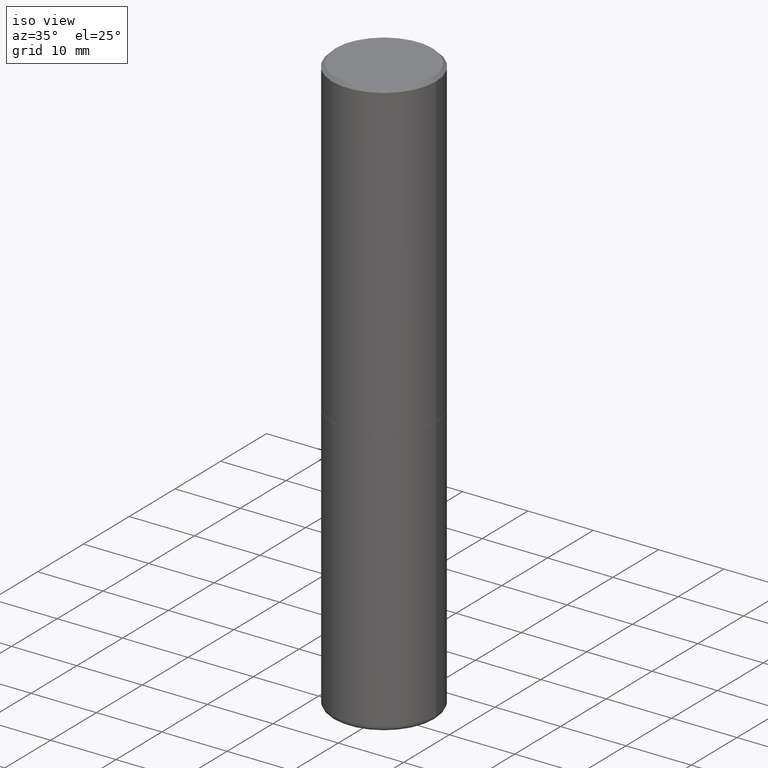
[diagram: clean part render]
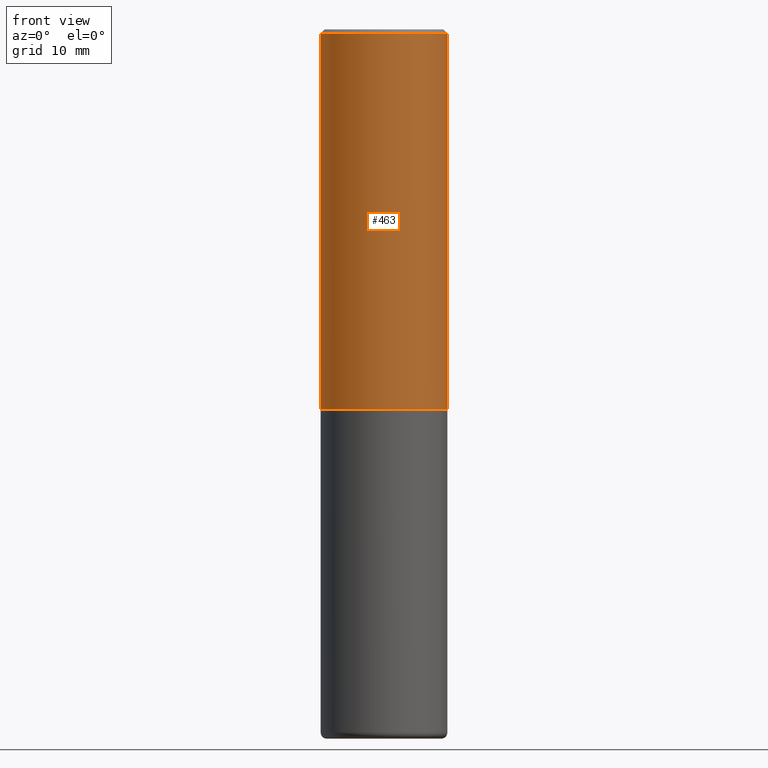
[diagram: tour spotlight — one face highlighted and labeled with its STEP entity id]
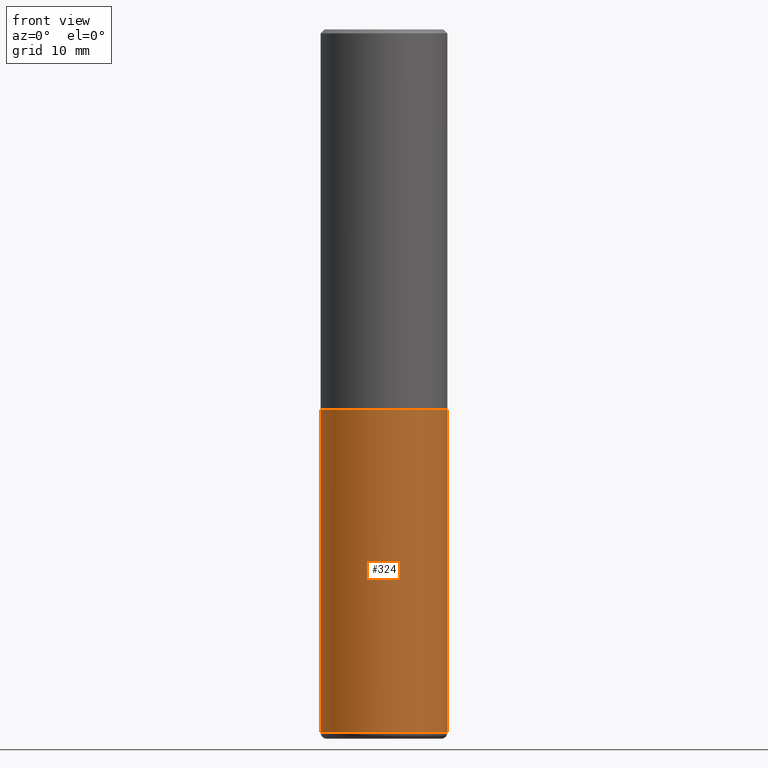
[diagram: tour spotlight — one face highlighted and labeled with its STEP entity id]
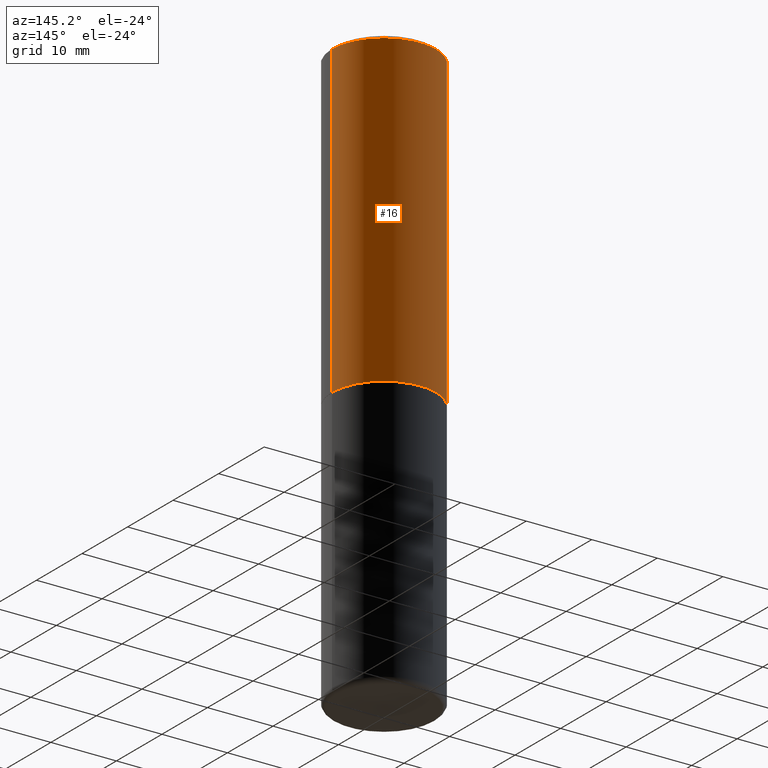
[diagram: tour spotlight — one face highlighted and labeled with its STEP entity id]
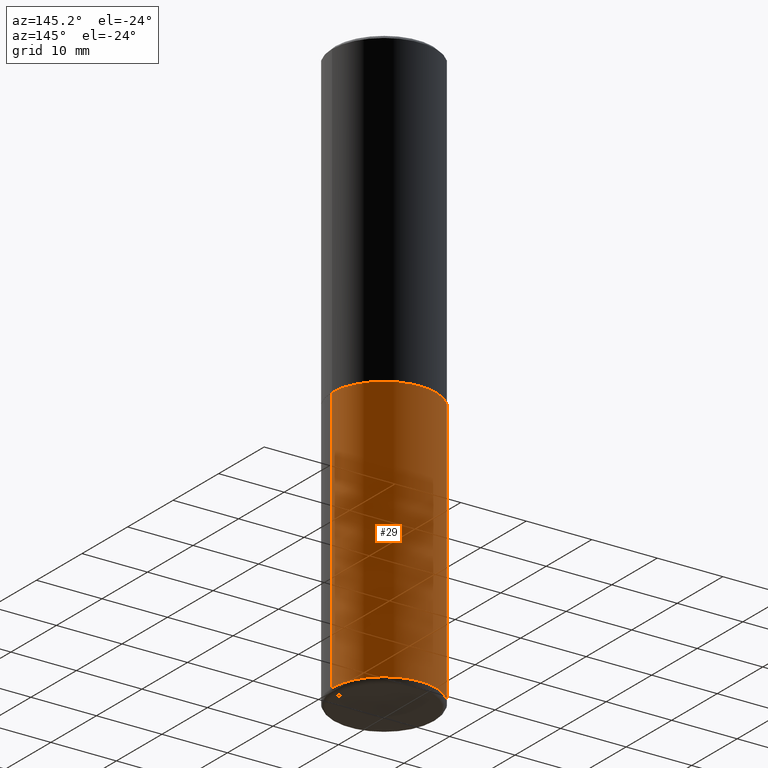
[diagram: tour spotlight — one face highlighted and labeled with its STEP entity id]
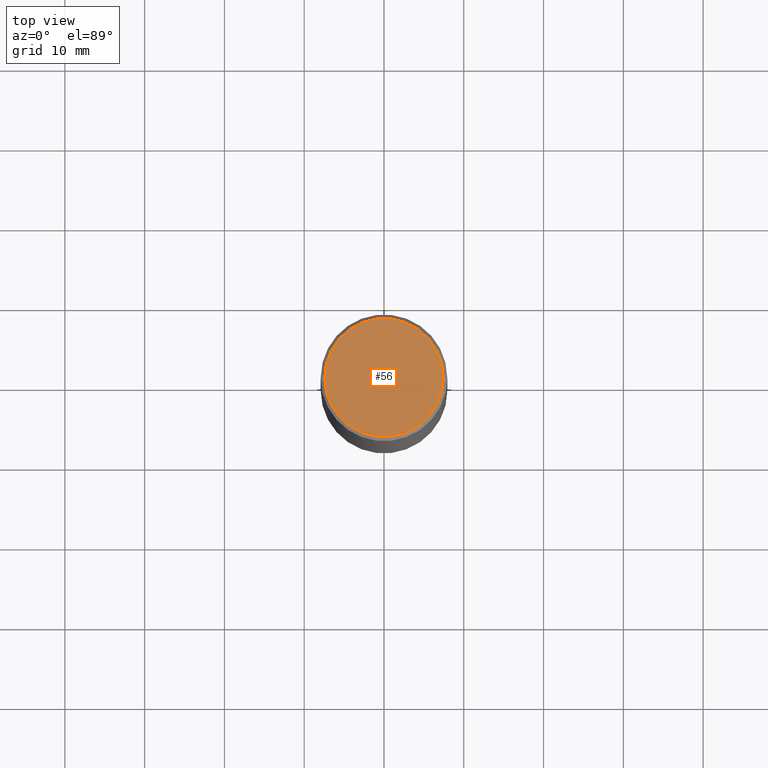
[diagram: tour spotlight — one face highlighted and labeled with its STEP entity id]
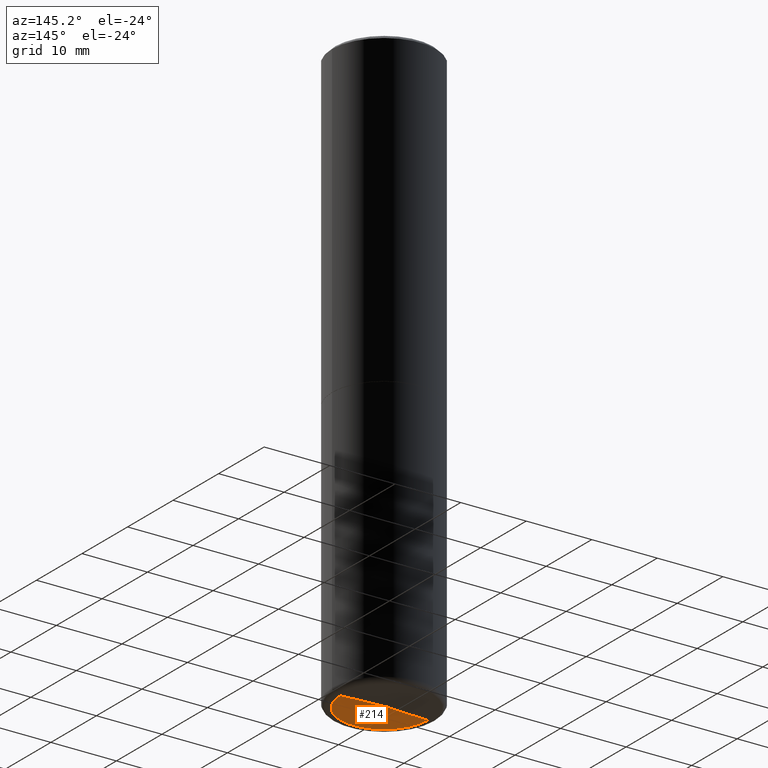
[diagram: tour spotlight — one face highlighted and labeled with its STEP entity id]
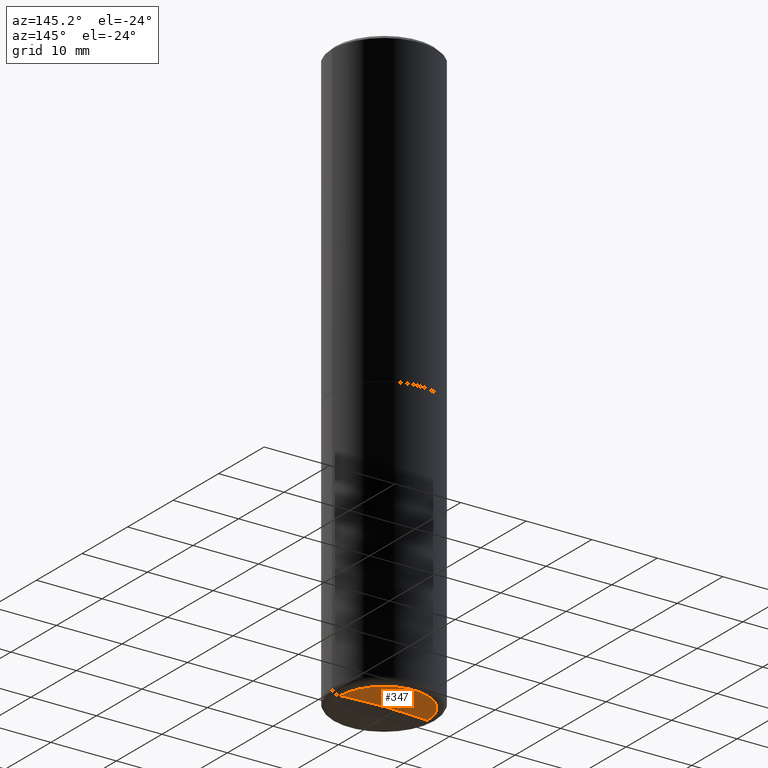
[diagram: tour spotlight — one face highlighted and labeled with its STEP entity id]
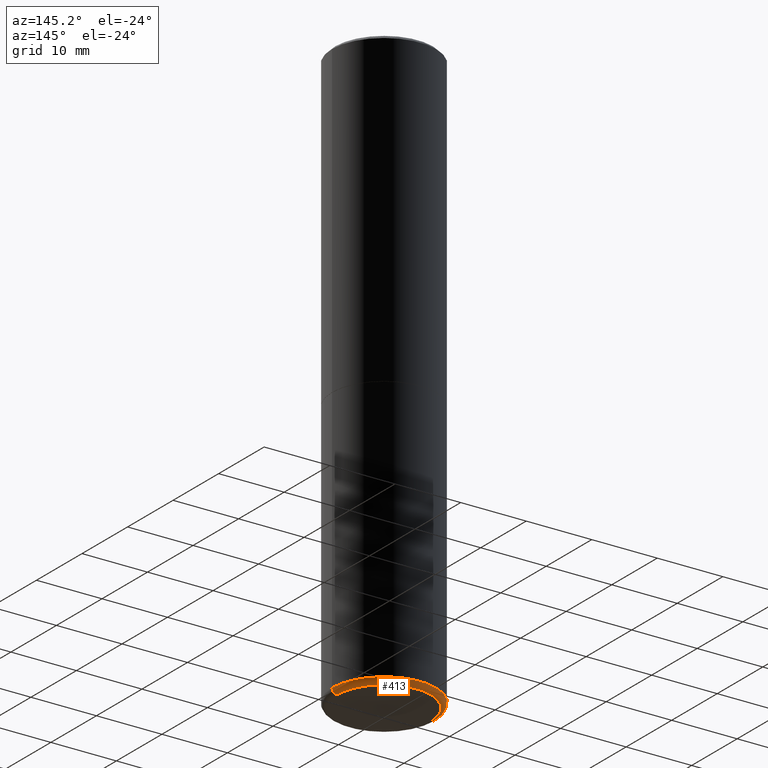
[diagram: tour spotlight — one face highlighted and labeled with its STEP entity id]
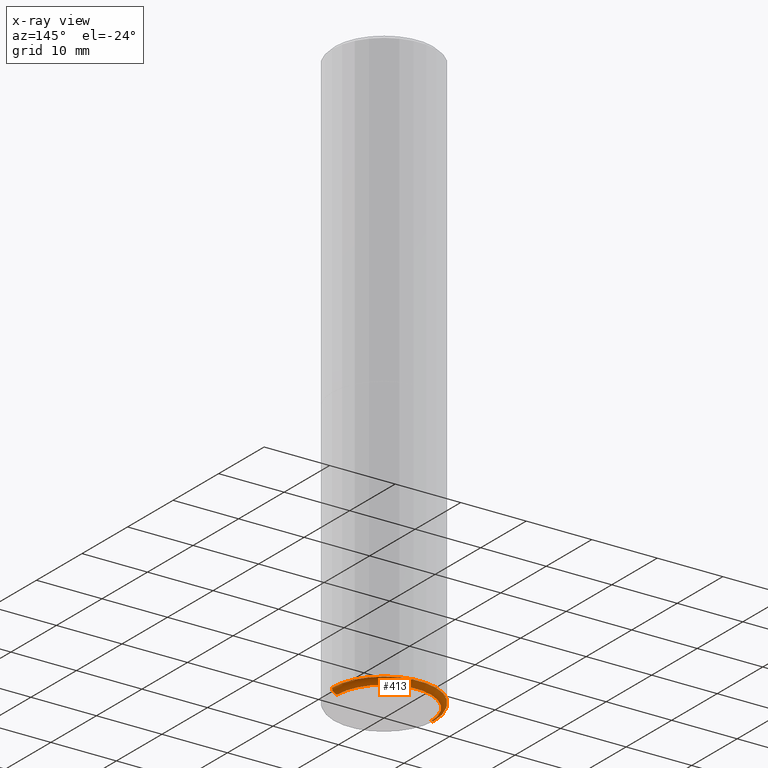
[diagram: x-ray of the same camera — body ghosted, this tour face saturated]
A machine part: a face-by-face anatomy tour. The part has 17 B-rep faces; the first image is the clean iso view, then the 8 largest visible faces are spotlighted one at a time (largest first), each with its STEP entity span.

Face 1 — front view, entity #463. In plain terms, the highlighted cylindrical surface (partial cylindrical patch) has radius 7.9375 mm, axis along (-0, 0, 1).
Definition (entity closure, byte-faithful):
#7 = ORIENTED_EDGE ( 'NONE', *, *, #161, .F. ) ;
#13 = VERTEX_POINT ( 'NONE', #18 ) ;
#15 = DIRECTION ( 'NONE',  ( -2.445468806185136877E-29, 3.491481338843145188E-15, 1.000000000000000000 ) ) ;
#18 = CARTESIAN_POINT ( 'NONE',  ( 0.3124999999999994449, -2.213735251080463362E-15, -0.02000000000000014960 ) ) ;
#52 = DIRECTION ( 'NONE',  ( -2.445468806185136877E-29, 3.491481338843145188E-15, 1.000000000000000000 ) ) ;
#72 = ORIENTED_EDGE ( 'NONE', *, *, #388, .F. ) ;
#73 = CIRCLE ( 'NONE', #148, 0.3124999999999997224 ) ;
#77 = VERTEX_POINT ( 'NONE', #325 ) ;
#108 = EDGE_CURVE ( 'NONE', #77, #425, #73, .T. ) ;
#136 = CARTESIAN_POINT ( 'NONE',  ( 4.890937612370309067E-31, -6.982962677686343378E-17, -0.02000000000000014960 ) ) ;
#147 = ORIENTED_EDGE ( 'NONE', *, *, #275, .T. ) ;
#148 = AXIS2_PLACEMENT_3D ( 'NONE', #201, #162, #366 ) ;
#161 = EDGE_CURVE ( 'NONE', #229, #13, #414, .T. ) ;
#162 = DIRECTION ( 'NONE',  ( -2.445468806185136597E-29, 3.491481338843145583E-15, 1.000000000000000000 ) ) ;
#192 = CARTESIAN_POINT ( 'NONE',  ( -0.3124999999999996114, 2.220446049250310320E-15, -1.537167215704655990E-29 ) ) ;
#201 = CARTESIAN_POINT ( 'NONE',  ( 4.582808542790944955E-29, -6.543036028992054122E-15, -1.873999999999999666 ) ) ;
#202 = DIRECTION ( 'NONE',  ( -2.445468806185136597E-29, 3.491481338843145583E-15, 1.000000000000000000 ) ) ;
#208 = CYLINDRICAL_SURFACE ( 'NONE', #421, 0.3124999999999996114 ) ;
#229 = VERTEX_POINT ( 'NONE', #447 ) ;
#231 = VECTOR ( 'NONE', #15, 39.37007874015748143 ) ;
#244 = CARTESIAN_POINT ( 'NONE',  ( 0.000000000000000000, 0.000000000000000000, 0.000000000000000000 ) ) ;
#275 = EDGE_CURVE ( 'NONE', #425, #13, #473, .T. ) ;
#285 = CARTESIAN_POINT ( 'NONE',  ( 0.3124999999999997224, -8.725211865769010891E-15, -1.873999999999999666 ) ) ;
#325 = CARTESIAN_POINT ( 'NONE',  ( -0.3124999999999997224, -1.085986778634146418E-15, -1.873999999999999666 ) ) ;
#345 = VECTOR ( 'NONE', #52, 39.37007874015748143 ) ;
#366 = DIRECTION ( 'NONE',  ( 1.000000000000000000, -6.982962677686266711E-15, 0.000000000000000000 ) ) ;
#385 = ORIENTED_EDGE ( 'NONE', *, *, #108, .T. ) ;
#388 = EDGE_CURVE ( 'NONE', #77, #229, #408, .T. ) ;
#392 = CARTESIAN_POINT ( 'NONE',  ( 0.3124999999999996114, -2.182175836776955586E-15, 1.523805242436227833E-29 ) ) ;
#399 = AXIS2_PLACEMENT_3D ( 'NONE', #136, #418, #450 ) ;
#407 = FACE_OUTER_BOUND ( 'NONE', #458, .T. ) ;
#408 = LINE ( 'NONE', #192, #345 ) ;
#414 = CIRCLE ( 'NONE', #399, 0.3124999999999994449 ) ;
#418 = DIRECTION ( 'NONE',  ( -2.445468806185136597E-29, 3.491481338843145583E-15, 1.000000000000000000 ) ) ;
#421 = AXIS2_PLACEMENT_3D ( 'NONE', #244, #202, #492 ) ;
#425 = VERTEX_POINT ( 'NONE', #285 ) ;
#447 = CARTESIAN_POINT ( 'NONE',  ( -0.3124999999999994449, 2.112346210000091499E-15, -0.02000000000000014960 ) ) ;
#450 = DIRECTION ( 'NONE',  ( 1.000000000000000000, -6.982962677686267499E-15, 0.000000000000000000 ) ) ;
#458 = EDGE_LOOP ( 'NONE', ( #72, #385, #147, #7 ) ) ;
#463 = ADVANCED_FACE ( 'NONE', ( #407 ), #208, .T. ) ;
#473 = LINE ( 'NONE', #392, #231 ) ;
#492 = DIRECTION ( 'NONE',  ( 1.000000000000000000, -6.982962677686266711E-15, 4.876176775795935232E-29 ) ) ;

Face 2 — front view, entity #324. In plain terms, the highlighted cylindrical surface (partial cylindrical patch) has radius 7.9375 mm, axis along (-0, 0, 1).
Definition (entity closure, byte-faithful):
#1 = EDGE_LOOP ( 'NONE', ( #116, #70, #228, #4 ) ) ;
#2 = VERTEX_POINT ( 'NONE', #466 ) ;
#4 = ORIENTED_EDGE ( 'NONE', *, *, #354, .F. ) ;
#14 = LINE ( 'NONE', #90, #36 ) ;
#22 = FACE_OUTER_BOUND ( 'NONE', #1, .T. ) ;
#36 = VECTOR ( 'NONE', #412, 39.37007874015748143 ) ;
#39 = CARTESIAN_POINT ( 'NONE',  ( 0.3124999999999996114, -2.182175836776955586E-15, 1.523805242436227833E-29 ) ) ;
#41 = VERTEX_POINT ( 'NONE', #94 ) ;
#66 = VECTOR ( 'NONE', #85, 39.37007874015748143 ) ;
#70 = ORIENTED_EDGE ( 'NONE', *, *, #419, .T. ) ;
#75 = VERTEX_POINT ( 'NONE', #118 ) ;
#85 = DIRECTION ( 'NONE',  ( -2.445468806185136877E-29, 3.491481338843145188E-15, 1.000000000000000000 ) ) ;
#90 = CARTESIAN_POINT ( 'NONE',  ( -0.3124999999999996114, 2.220446049250310320E-15, -1.537167215704655990E-29 ) ) ;
#94 = CARTESIAN_POINT ( 'NONE',  ( -0.3124999999999997224, -7.110539822981658946E-15, -1.874999999999999778 ) ) ;
#97 = DIRECTION ( 'NONE',  ( -2.445468806185136597E-29, 3.491481338843145583E-15, 1.000000000000000000 ) ) ;
#102 = DIRECTION ( 'NONE',  ( 1.000000000000000000, -6.982962677686266711E-15, 0.000000000000000000 ) ) ;
#116 = ORIENTED_EDGE ( 'NONE', *, *, #297, .F. ) ;
#118 = CARTESIAN_POINT ( 'NONE',  ( -0.3124999999999994449, -7.110539822981660524E-15, -3.470001142308074993 ) ) ;
#128 = CIRCLE ( 'NONE', #417, 0.3124999999999994449 ) ;
#129 = CARTESIAN_POINT ( 'NONE',  ( 0.3124999999999994449, -1.429762007090999581E-14, -3.470001142308074993 ) ) ;
#174 = CARTESIAN_POINT ( 'NONE',  ( 8.485779550941188194E-29, -1.211544423413304219E-14, -3.470001142308074993 ) ) ;
#210 = AXIS2_PLACEMENT_3D ( 'NONE', #451, #97, #102 ) ;
#226 = LINE ( 'NONE', #39, #66 ) ;
#228 = ORIENTED_EDGE ( 'NONE', *, *, #453, .T. ) ;
#241 = CYLINDRICAL_SURFACE ( 'NONE', #316, 0.3124999999999996114 ) ;
#266 = DIRECTION ( 'NONE',  ( -2.445468806185136597E-29, 3.491481338843145583E-15, 1.000000000000000000 ) ) ;
#297 = EDGE_CURVE ( 'NONE', #75, #41, #14, .T. ) ;
#307 = DIRECTION ( 'NONE',  ( 1.000000000000000000, -6.982962677686269077E-15, 0.000000000000000000 ) ) ;
#316 = AXIS2_PLACEMENT_3D ( 'NONE', #477, #326, #403 ) ;
#324 = ADVANCED_FACE ( 'NONE', ( #22 ), #241, .T. ) ;
#326 = DIRECTION ( 'NONE',  ( -2.445468806185136597E-29, 3.491481338843145583E-15, 1.000000000000000000 ) ) ;
#354 = EDGE_CURVE ( 'NONE', #41, #2, #383, .T. ) ;
#383 = CIRCLE ( 'NONE', #210, 0.3124999999999997224 ) ;
#389 = VERTEX_POINT ( 'NONE', #129 ) ;
#403 = DIRECTION ( 'NONE',  ( 1.000000000000000000, -6.982962677686266711E-15, 4.876176775795935232E-29 ) ) ;
#412 = DIRECTION ( 'NONE',  ( -2.445468806185136877E-29, 3.491481338843145188E-15, 1.000000000000000000 ) ) ;
#417 = AXIS2_PLACEMENT_3D ( 'NONE', #174, #266, #307 ) ;
#419 = EDGE_CURVE ( 'NONE', #75, #389, #128, .T. ) ;
#451 = CARTESIAN_POINT ( 'NONE',  ( 4.585254011597130558E-29, -6.546527510330897918E-15, -1.874999999999999778 ) ) ;
#453 = EDGE_CURVE ( 'NONE', #389, #2, #226, .T. ) ;
#466 = CARTESIAN_POINT ( 'NONE',  ( 0.3124999999999997224, -8.728703347107853899E-15, -1.874999999999999778 ) ) ;
#477 = CARTESIAN_POINT ( 'NONE',  ( 0.000000000000000000, 0.000000000000000000, 0.000000000000000000 ) ) ;

Face 3 — auxiliary view, entity #16. In plain terms, the highlighted cylindrical surface (partial cylindrical patch) has radius 7.9375 mm, axis along (-0, 0, 1).
Definition (entity closure, byte-faithful):
#12 = DIRECTION ( 'NONE',  ( -2.445468806185136597E-29, 3.491481338843145583E-15, 1.000000000000000000 ) ) ;
#13 = VERTEX_POINT ( 'NONE', #18 ) ;
#15 = DIRECTION ( 'NONE',  ( -2.445468806185136877E-29, 3.491481338843145188E-15, 1.000000000000000000 ) ) ;
#16 = ADVANCED_FACE ( 'NONE', ( #288 ), #46, .T. ) ;
#18 = CARTESIAN_POINT ( 'NONE',  ( 0.3124999999999994449, -2.213735251080463362E-15, -0.02000000000000014960 ) ) ;
#46 = CYLINDRICAL_SURFACE ( 'NONE', #437, 0.3124999999999996114 ) ;
#52 = DIRECTION ( 'NONE',  ( -2.445468806185136877E-29, 3.491481338843145188E-15, 1.000000000000000000 ) ) ;
#58 = CARTESIAN_POINT ( 'NONE',  ( 4.890937612370309067E-31, -6.982962677686343378E-17, -0.02000000000000014960 ) ) ;
#76 = EDGE_CURVE ( 'NONE', #425, #77, #456, .T. ) ;
#77 = VERTEX_POINT ( 'NONE', #325 ) ;
#122 = DIRECTION ( 'NONE',  ( 1.000000000000000000, -6.982962677686266711E-15, 0.000000000000000000 ) ) ;
#126 = CARTESIAN_POINT ( 'NONE',  ( 0.000000000000000000, 0.000000000000000000, 0.000000000000000000 ) ) ;
#135 = AXIS2_PLACEMENT_3D ( 'NONE', #58, #170, #379 ) ;
#144 = EDGE_LOOP ( 'NONE', ( #461, #189, #146, #376 ) ) ;
#146 = ORIENTED_EDGE ( 'NONE', *, *, #234, .F. ) ;
#170 = DIRECTION ( 'NONE',  ( -2.445468806185136597E-29, 3.491481338843145583E-15, 1.000000000000000000 ) ) ;
#189 = ORIENTED_EDGE ( 'NONE', *, *, #388, .T. ) ;
#192 = CARTESIAN_POINT ( 'NONE',  ( -0.3124999999999996114, 2.220446049250310320E-15, -1.537167215704655990E-29 ) ) ;
#193 = DIRECTION ( 'NONE',  ( -2.445468806185136597E-29, 3.491481338843145583E-15, 1.000000000000000000 ) ) ;
#229 = VERTEX_POINT ( 'NONE', #447 ) ;
#231 = VECTOR ( 'NONE', #15, 39.37007874015748143 ) ;
#234 = EDGE_CURVE ( 'NONE', #13, #229, #432, .T. ) ;
#238 = AXIS2_PLACEMENT_3D ( 'NONE', #433, #12, #122 ) ;
#240 = DIRECTION ( 'NONE',  ( 1.000000000000000000, -6.982962677686266711E-15, 4.876176775795935232E-29 ) ) ;
#275 = EDGE_CURVE ( 'NONE', #425, #13, #473, .T. ) ;
#285 = CARTESIAN_POINT ( 'NONE',  ( 0.3124999999999997224, -8.725211865769010891E-15, -1.873999999999999666 ) ) ;
#288 = FACE_OUTER_BOUND ( 'NONE', #144, .T. ) ;
#325 = CARTESIAN_POINT ( 'NONE',  ( -0.3124999999999997224, -1.085986778634146418E-15, -1.873999999999999666 ) ) ;
#345 = VECTOR ( 'NONE', #52, 39.37007874015748143 ) ;
#376 = ORIENTED_EDGE ( 'NONE', *, *, #275, .F. ) ;
#379 = DIRECTION ( 'NONE',  ( 1.000000000000000000, -6.982962677686267499E-15, 0.000000000000000000 ) ) ;
#388 = EDGE_CURVE ( 'NONE', #77, #229, #408, .T. ) ;
#392 = CARTESIAN_POINT ( 'NONE',  ( 0.3124999999999996114, -2.182175836776955586E-15, 1.523805242436227833E-29 ) ) ;
#408 = LINE ( 'NONE', #192, #345 ) ;
#425 = VERTEX_POINT ( 'NONE', #285 ) ;
#432 = CIRCLE ( 'NONE', #135, 0.3124999999999994449 ) ;
#433 = CARTESIAN_POINT ( 'NONE',  ( 4.582808542790944955E-29, -6.543036028992054122E-15, -1.873999999999999666 ) ) ;
#437 = AXIS2_PLACEMENT_3D ( 'NONE', #126, #193, #240 ) ;
#447 = CARTESIAN_POINT ( 'NONE',  ( -0.3124999999999994449, 2.112346210000091499E-15, -0.02000000000000014960 ) ) ;
#456 = CIRCLE ( 'NONE', #238, 0.3124999999999997224 ) ;
#461 = ORIENTED_EDGE ( 'NONE', *, *, #76, .T. ) ;
#473 = LINE ( 'NONE', #392, #231 ) ;

Face 4 — auxiliary view, entity #29. In plain terms, the highlighted cylindrical surface (partial cylindrical patch) has radius 7.9375 mm, axis along (-0, 0, 1).
Definition (entity closure, byte-faithful):
#2 = VERTEX_POINT ( 'NONE', #466 ) ;
#14 = LINE ( 'NONE', #90, #36 ) ;
#29 = ADVANCED_FACE ( 'NONE', ( #51 ), #476, .T. ) ;
#36 = VECTOR ( 'NONE', #412, 39.37007874015748143 ) ;
#39 = CARTESIAN_POINT ( 'NONE',  ( 0.3124999999999996114, -2.182175836776955586E-15, 1.523805242436227833E-29 ) ) ;
#41 = VERTEX_POINT ( 'NONE', #94 ) ;
#51 = FACE_OUTER_BOUND ( 'NONE', #269, .T. ) ;
#54 = DIRECTION ( 'NONE',  ( -2.445468806185136597E-29, 3.491481338843145583E-15, 1.000000000000000000 ) ) ;
#60 = AXIS2_PLACEMENT_3D ( 'NONE', #93, #54, #209 ) ;
#66 = VECTOR ( 'NONE', #85, 39.37007874015748143 ) ;
#75 = VERTEX_POINT ( 'NONE', #118 ) ;
#85 = DIRECTION ( 'NONE',  ( -2.445468806185136877E-29, 3.491481338843145188E-15, 1.000000000000000000 ) ) ;
#90 = CARTESIAN_POINT ( 'NONE',  ( -0.3124999999999996114, 2.220446049250310320E-15, -1.537167215704655990E-29 ) ) ;
#93 = CARTESIAN_POINT ( 'NONE',  ( 0.000000000000000000, 0.000000000000000000, 0.000000000000000000 ) ) ;
#94 = CARTESIAN_POINT ( 'NONE',  ( -0.3124999999999997224, -7.110539822981658946E-15, -1.874999999999999778 ) ) ;
#99 = DIRECTION ( 'NONE',  ( -2.445468806185136597E-29, 3.491481338843145583E-15, 1.000000000000000000 ) ) ;
#104 = CIRCLE ( 'NONE', #139, 0.3124999999999994449 ) ;
#109 = AXIS2_PLACEMENT_3D ( 'NONE', #336, #99, #481 ) ;
#118 = CARTESIAN_POINT ( 'NONE',  ( -0.3124999999999994449, -7.110539822981660524E-15, -3.470001142308074993 ) ) ;
#124 = EDGE_CURVE ( 'NONE', #2, #41, #367, .T. ) ;
#129 = CARTESIAN_POINT ( 'NONE',  ( 0.3124999999999994449, -1.429762007090999581E-14, -3.470001142308074993 ) ) ;
#139 = AXIS2_PLACEMENT_3D ( 'NONE', #320, #467, #157 ) ;
#142 = ORIENTED_EDGE ( 'NONE', *, *, #297, .T. ) ;
#157 = DIRECTION ( 'NONE',  ( 1.000000000000000000, -6.982962677686269077E-15, 0.000000000000000000 ) ) ;
#209 = DIRECTION ( 'NONE',  ( 1.000000000000000000, -6.982962677686266711E-15, 4.876176775795935232E-29 ) ) ;
#226 = LINE ( 'NONE', #39, #66 ) ;
#265 = ORIENTED_EDGE ( 'NONE', *, *, #453, .F. ) ;
#269 = EDGE_LOOP ( 'NONE', ( #311, #142, #357, #265 ) ) ;
#297 = EDGE_CURVE ( 'NONE', #75, #41, #14, .T. ) ;
#311 = ORIENTED_EDGE ( 'NONE', *, *, #337, .T. ) ;
#320 = CARTESIAN_POINT ( 'NONE',  ( 8.485779550941188194E-29, -1.211544423413304219E-14, -3.470001142308074993 ) ) ;
#336 = CARTESIAN_POINT ( 'NONE',  ( 4.585254011597130558E-29, -6.546527510330897918E-15, -1.874999999999999778 ) ) ;
#337 = EDGE_CURVE ( 'NONE', #389, #75, #104, .T. ) ;
#357 = ORIENTED_EDGE ( 'NONE', *, *, #124, .F. ) ;
#367 = CIRCLE ( 'NONE', #109, 0.3124999999999997224 ) ;
#389 = VERTEX_POINT ( 'NONE', #129 ) ;
#412 = DIRECTION ( 'NONE',  ( -2.445468806185136877E-29, 3.491481338843145188E-15, 1.000000000000000000 ) ) ;
#453 = EDGE_CURVE ( 'NONE', #389, #2, #226, .T. ) ;
#466 = CARTESIAN_POINT ( 'NONE',  ( 0.3124999999999997224, -8.728703347107853899E-15, -1.874999999999999778 ) ) ;
#467 = DIRECTION ( 'NONE',  ( -2.445468806185136597E-29, 3.491481338843145583E-15, 1.000000000000000000 ) ) ;
#476 = CYLINDRICAL_SURFACE ( 'NONE', #60, 0.3124999999999996114 ) ;
#481 = DIRECTION ( 'NONE',  ( 1.000000000000000000, -6.982962677686266711E-15, 0.000000000000000000 ) ) ;

Face 5 — top view, entity #56. In plain terms, the highlighted planar face has unit normal (0, -0, -1).
Definition (entity closure, byte-faithful):
#20 = CARTESIAN_POINT ( 'NONE',  ( -0.2924999999999993716, 2.077431396611659850E-15, 4.268512490086005323E-18 ) ) ;
#32 = DIRECTION ( 'NONE',  ( 1.000000000000000000, -6.982962677686266711E-15, 4.876067333457700127E-29 ) ) ;
#55 = CARTESIAN_POINT ( 'NONE',  ( -1.043851414335219820E-46, 1.490343170380447200E-32, 4.268512490100411279E-18 ) ) ;
#56 = ADVANCED_FACE ( 'NONE', ( #317 ), #248, .F. ) ;
#83 = AXIS2_PLACEMENT_3D ( 'NONE', #55, #281, #251 ) ;
#91 = CIRCLE ( 'NONE', #252, 0.2924999999999993716 ) ;
#100 = VERTEX_POINT ( 'NONE', #196 ) ;
#101 = EDGE_CURVE ( 'NONE', #406, #100, #454, .T. ) ;
#115 = ORIENTED_EDGE ( 'NONE', *, *, #101, .T. ) ;
#196 = CARTESIAN_POINT ( 'NONE',  ( 0.2924999999999993716, -2.110215457714315987E-15, 4.268512490114932791E-18 ) ) ;
#207 = CARTESIAN_POINT ( 'NONE',  ( 2.042516583223228201E-15, 0.2924999999999993716, -1.019124035366567634E-15 ) ) ;
#220 = DIRECTION ( 'NONE',  ( -2.445468806185136597E-29, 3.491481338843145583E-15, 1.000000000000000000 ) ) ;
#248 = PLANE ( 'NONE',  #302 ) ;
#251 = DIRECTION ( 'NONE',  ( 1.000000000000000000, -6.982962677686266711E-15, 4.876067333457700127E-29 ) ) ;
#252 = AXIS2_PLACEMENT_3D ( 'NONE', #486, #220, #32 ) ;
#254 = EDGE_CURVE ( 'NONE', #100, #406, #91, .T. ) ;
#281 = DIRECTION ( 'NONE',  ( -2.445468806185136597E-29, 3.491481338843145583E-15, 1.000000000000000000 ) ) ;
#302 = AXIS2_PLACEMENT_3D ( 'NONE', #207, #402, #313 ) ;
#313 = DIRECTION ( 'NONE',  ( -1.000000000000000000, 6.982962677686265922E-15, -4.876176775795935793E-29 ) ) ;
#317 = FACE_OUTER_BOUND ( 'NONE', #429, .T. ) ;
#402 = DIRECTION ( 'NONE',  ( 2.438088387897960049E-29, -3.491481338843145188E-15, -1.000000000000000000 ) ) ;
#406 = VERTEX_POINT ( 'NONE', #20 ) ;
#420 = ORIENTED_EDGE ( 'NONE', *, *, #254, .T. ) ;
#429 = EDGE_LOOP ( 'NONE', ( #115, #420 ) ) ;
#454 = CIRCLE ( 'NONE', #83, 0.2924999999999993716 ) ;
#486 = CARTESIAN_POINT ( 'NONE',  ( -1.043851414335219820E-46, 1.490343170380447200E-32, 4.268512490100411279E-18 ) ) ;

Face 6 — auxiliary view, entity #214. In plain terms, the highlighted conical surface has half-angle 88 deg.
Definition (entity closure, byte-faithful):
#28 = DIRECTION ( 'NONE',  ( 2.445468806185136597E-29, -3.491481338843145583E-15, -1.000000000000000000 ) ) ;
#45 = CARTESIAN_POINT ( 'NONE',  ( 0.2622382039350492078, -1.401865996506585776E-14, -3.499825462644184704 ) ) ;
#50 = CARTESIAN_POINT ( 'NONE',  ( 0.2622382039350492078, -1.401865996506585776E-14, -3.499825462644184704 ) ) ;
#61 = CARTESIAN_POINT ( 'NONE',  ( 8.536319468982178689E-29, -1.218760184262940823E-14, -3.490667902772638609 ) ) ;
#74 = ORIENTED_EDGE ( 'NONE', *, *, #400, .T. ) ;
#78 = VECTOR ( 'NONE', #368, 39.37007874015747433 ) ;
#110 = ORIENTED_EDGE ( 'NONE', *, *, #471, .F. ) ;
#143 = CARTESIAN_POINT ( 'NONE',  ( 8.558713995988817956E-29, -1.221957529203025001E-14, -3.499825462644184704 ) ) ;
#173 = AXIS2_PLACEMENT_3D ( 'NONE', #479, #28, #377 ) ;
#185 = DIRECTION ( 'NONE',  ( 1.000000000000000000, -6.982962677686264344E-15, 0.000000000000000000 ) ) ;
#204 = LINE ( 'NONE', #50, #78 ) ;
#214 = ADVANCED_FACE ( 'NONE', ( #338 ), #224, .F. ) ;
#217 = VECTOR ( 'NONE', #371, 39.37007874015747433 ) ;
#223 = VERTEX_POINT ( 'NONE', #452 ) ;
#224 = CONICAL_SURFACE ( 'NONE', #173, 0.2622382039350492078, 1.535889741755008808 ) ;
#250 = CARTESIAN_POINT ( 'NONE',  ( -0.2622382039350492078, -1.038837570128832285E-14, -3.499825462644184704 ) ) ;
#262 = VERTEX_POINT ( 'NONE', #45 ) ;
#268 = AXIS2_PLACEMENT_3D ( 'NONE', #143, #305, #185 ) ;
#271 = ORIENTED_EDGE ( 'NONE', *, *, #282, .F. ) ;
#282 = EDGE_CURVE ( 'NONE', #349, #223, #361, .T. ) ;
#305 = DIRECTION ( 'NONE',  ( -2.445468806185136597E-29, 3.491481338843145583E-15, 1.000000000000000000 ) ) ;
#309 = EDGE_LOOP ( 'NONE', ( #271, #74, #110 ) ) ;
#338 = FACE_OUTER_BOUND ( 'NONE', #309, .T. ) ;
#349 = VERTEX_POINT ( 'NONE', #61 ) ;
#361 = LINE ( 'NONE', #250, #217 ) ;
#368 = DIRECTION ( 'NONE',  ( 0.9993908270190957621, -6.978169709227547010E-15, -0.03489949670250219738 ) ) ;
#371 = DIRECTION ( 'NONE',  ( -0.9993908270190957621, 6.856857904024552526E-15, -0.03489949670250219738 ) ) ;
#377 = DIRECTION ( 'NONE',  ( -1.000000000000000000, 6.982962677686264344E-15, 0.000000000000000000 ) ) ;
#400 = EDGE_CURVE ( 'NONE', #349, #262, #204, .T. ) ;
#452 = CARTESIAN_POINT ( 'NONE',  ( -0.2622382039350492078, -1.038837570128832285E-14, -3.499825462644184704 ) ) ;
#471 = EDGE_CURVE ( 'NONE', #223, #262, #482, .T. ) ;
#479 = CARTESIAN_POINT ( 'NONE',  ( 8.558713995988817956E-29, -1.221957529203025001E-14, -3.499825462644184704 ) ) ;
#482 = CIRCLE ( 'NONE', #268, 0.2622382039350492078 ) ;

Face 7 — auxiliary view, entity #347. In plain terms, the highlighted conical surface has half-angle 88 deg.
Definition (entity closure, byte-faithful):
#6 = CONICAL_SURFACE ( 'NONE', #390, 0.2622382039350492078, 1.535889741755008808 ) ;
#37 = EDGE_CURVE ( 'NONE', #262, #223, #350, .T. ) ;
#44 = EDGE_LOOP ( 'NONE', ( #306, #181, #111 ) ) ;
#45 = CARTESIAN_POINT ( 'NONE',  ( 0.2622382039350492078, -1.401865996506585776E-14, -3.499825462644184704 ) ) ;
#50 = CARTESIAN_POINT ( 'NONE',  ( 0.2622382039350492078, -1.401865996506585776E-14, -3.499825462644184704 ) ) ;
#61 = CARTESIAN_POINT ( 'NONE',  ( 8.536319468982178689E-29, -1.218760184262940823E-14, -3.490667902772638609 ) ) ;
#78 = VECTOR ( 'NONE', #368, 39.37007874015747433 ) ;
#111 = ORIENTED_EDGE ( 'NONE', *, *, #37, .F. ) ;
#152 = DIRECTION ( 'NONE',  ( -2.445468806185136597E-29, 3.491481338843145583E-15, 1.000000000000000000 ) ) ;
#181 = ORIENTED_EDGE ( 'NONE', *, *, #282, .T. ) ;
#204 = LINE ( 'NONE', #50, #78 ) ;
#217 = VECTOR ( 'NONE', #371, 39.37007874015747433 ) ;
#223 = VERTEX_POINT ( 'NONE', #452 ) ;
#245 = DIRECTION ( 'NONE',  ( 2.445468806185136597E-29, -3.491481338843145583E-15, -1.000000000000000000 ) ) ;
#250 = CARTESIAN_POINT ( 'NONE',  ( -0.2622382039350492078, -1.038837570128832285E-14, -3.499825462644184704 ) ) ;
#262 = VERTEX_POINT ( 'NONE', #45 ) ;
#282 = EDGE_CURVE ( 'NONE', #349, #223, #361, .T. ) ;
#286 = CARTESIAN_POINT ( 'NONE',  ( 8.558713995988817956E-29, -1.221957529203025001E-14, -3.499825462644184704 ) ) ;
#306 = ORIENTED_EDGE ( 'NONE', *, *, #400, .F. ) ;
#323 = FACE_OUTER_BOUND ( 'NONE', #44, .T. ) ;
#347 = ADVANCED_FACE ( 'NONE', ( #323 ), #6, .F. ) ;
#349 = VERTEX_POINT ( 'NONE', #61 ) ;
#350 = CIRCLE ( 'NONE', #469, 0.2622382039350492078 ) ;
#361 = LINE ( 'NONE', #250, #217 ) ;
#368 = DIRECTION ( 'NONE',  ( 0.9993908270190957621, -6.978169709227547010E-15, -0.03489949670250219738 ) ) ;
#370 = CARTESIAN_POINT ( 'NONE',  ( 8.558713995988817956E-29, -1.221957529203025001E-14, -3.499825462644184704 ) ) ;
#371 = DIRECTION ( 'NONE',  ( -0.9993908270190957621, 6.856857904024552526E-15, -0.03489949670250219738 ) ) ;
#373 = DIRECTION ( 'NONE',  ( 1.000000000000000000, -6.982962677686264344E-15, 0.000000000000000000 ) ) ;
#390 = AXIS2_PLACEMENT_3D ( 'NONE', #286, #245, #483 ) ;
#400 = EDGE_CURVE ( 'NONE', #349, #262, #204, .T. ) ;
#452 = CARTESIAN_POINT ( 'NONE',  ( -0.2622382039350492078, -1.038837570128832285E-14, -3.499825462644184704 ) ) ;
#469 = AXIS2_PLACEMENT_3D ( 'NONE', #370, #152, #373 ) ;
#483 = DIRECTION ( 'NONE',  ( -1.000000000000000000, 6.982962677686264344E-15, 0.000000000000000000 ) ) ;

Face 8 — auxiliary view, entity #413. An x-ray twin of the same camera follows (body ghosted, this face saturated) — the face is partly hidden behind the body. In plain terms, the highlighted toroidal blend (fillet) surface has major radius 7.1755 mm and minor (blend) radius 0.762 mm.
Definition (entity closure, byte-faithful):
#33 = EDGE_LOOP ( 'NONE', ( #34, #380, #353, #107 ) ) ;
#34 = ORIENTED_EDGE ( 'NONE', *, *, #203, .T. ) ;
#63 = DIRECTION ( 'NONE',  ( 1.000000000000000000, -6.982962677686269077E-15, 4.883557194083113462E-29 ) ) ;
#71 = CIRCLE ( 'NONE', #199, 0.02999999999999947500 ) ;
#75 = VERTEX_POINT ( 'NONE', #118 ) ;
#80 = CARTESIAN_POINT ( 'NONE',  ( 8.485779550941188194E-29, -1.211544423413304219E-14, -3.470001142308074993 ) ) ;
#104 = CIRCLE ( 'NONE', #139, 0.3124999999999994449 ) ;
#107 = ORIENTED_EDGE ( 'NONE', *, *, #449, .F. ) ;
#113 = CARTESIAN_POINT ( 'NONE',  ( -0.2822382039350491700, -1.005487990761673507E-14, -3.499999999999999112 ) ) ;
#118 = CARTESIAN_POINT ( 'NONE',  ( -0.3124999999999994449, -7.110539822981660524E-15, -3.470001142308074993 ) ) ;
#119 = TOROIDAL_SURFACE ( 'NONE', #374, 0.2825000000000002509, 0.02999999999999949929 ) ;
#129 = CARTESIAN_POINT ( 'NONE',  ( 0.3124999999999994449, -1.429762007090999581E-14, -3.470001142308074993 ) ) ;
#139 = AXIS2_PLACEMENT_3D ( 'NONE', #320, #467, #157 ) ;
#157 = DIRECTION ( 'NONE',  ( 1.000000000000000000, -6.982962677686269077E-15, 0.000000000000000000 ) ) ;
#169 = CIRCLE ( 'NONE', #457, 0.02999999999999947500 ) ;
#175 = DIRECTION ( 'NONE',  ( 1.000000000000000000, -6.982962677686269866E-15, 0.000000000000000000 ) ) ;
#177 = EDGE_CURVE ( 'NONE', #426, #75, #169, .T. ) ;
#197 = CARTESIAN_POINT ( 'NONE',  ( 0.2825000000000002509, -1.408813119057941538E-14, -3.470001142308074993 ) ) ;
#199 = AXIS2_PLACEMENT_3D ( 'NONE', #197, #439, #322 ) ;
#203 = EDGE_CURVE ( 'NONE', #260, #426, #460, .T. ) ;
#211 = CARTESIAN_POINT ( 'NONE',  ( -0.2825000000000002509, -1.010816100561075620E-14, -3.470001142308074993 ) ) ;
#213 = CARTESIAN_POINT ( 'NONE',  ( 8.559140821647976968E-29, -1.222018468595100619E-14, -3.499999999999999112 ) ) ;
#216 = DIRECTION ( 'NONE',  ( 7.105427357601001859E-15, 1.000000000000000000, -3.491481338843145583E-15 ) ) ;
#260 = VERTEX_POINT ( 'NONE', #398 ) ;
#320 = CARTESIAN_POINT ( 'NONE',  ( 8.485779550941188194E-29, -1.211544423413304219E-14, -3.470001142308074993 ) ) ;
#322 = DIRECTION ( 'NONE',  ( 1.000000000000000000, -6.982962677686260400E-15, 0.000000000000000000 ) ) ;
#327 = FACE_OUTER_BOUND ( 'NONE', #33, .T. ) ;
#337 = EDGE_CURVE ( 'NONE', #389, #75, #104, .T. ) ;
#340 = DIRECTION ( 'NONE',  ( -2.445468806185136597E-29, 3.491481338843145583E-15, 1.000000000000000000 ) ) ;
#353 = ORIENTED_EDGE ( 'NONE', *, *, #337, .F. ) ;
#374 = AXIS2_PLACEMENT_3D ( 'NONE', #80, #340, #63 ) ;
#378 = DIRECTION ( 'NONE',  ( -2.445468806185136597E-29, 3.491481338843145583E-15, 1.000000000000000000 ) ) ;
#380 = ORIENTED_EDGE ( 'NONE', *, *, #177, .T. ) ;
#389 = VERTEX_POINT ( 'NONE', #129 ) ;
#398 = CARTESIAN_POINT ( 'NONE',  ( 0.2822382039350491700, -1.419104353024666152E-14, -3.499999999999999112 ) ) ;
#413 = ADVANCED_FACE ( 'NONE', ( #327 ), #119, .T. ) ;
#416 = DIRECTION ( 'NONE',  ( -1.000000000000000000, 7.105427357600985293E-15, 0.000000000000000000 ) ) ;
#426 = VERTEX_POINT ( 'NONE', #113 ) ;
#439 = DIRECTION ( 'NONE',  ( -6.982962677686266711E-15, -1.000000000000000000, 3.491481338843145583E-15 ) ) ;
#445 = AXIS2_PLACEMENT_3D ( 'NONE', #213, #378, #175 ) ;
#449 = EDGE_CURVE ( 'NONE', #260, #389, #71, .T. ) ;
#457 = AXIS2_PLACEMENT_3D ( 'NONE', #211, #216, #416 ) ;
#460 = CIRCLE ( 'NONE', #445, 0.2822382039350491700 ) ;
#467 = DIRECTION ( 'NONE',  ( -2.445468806185136597E-29, 3.491481338843145583E-15, 1.000000000000000000 ) ) ;